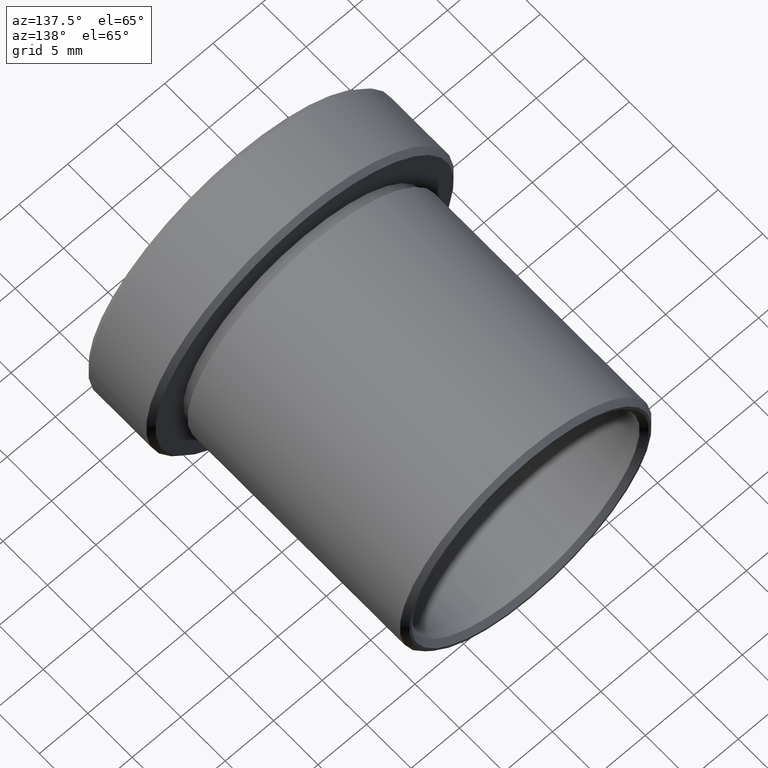
[diagram: clean part render]
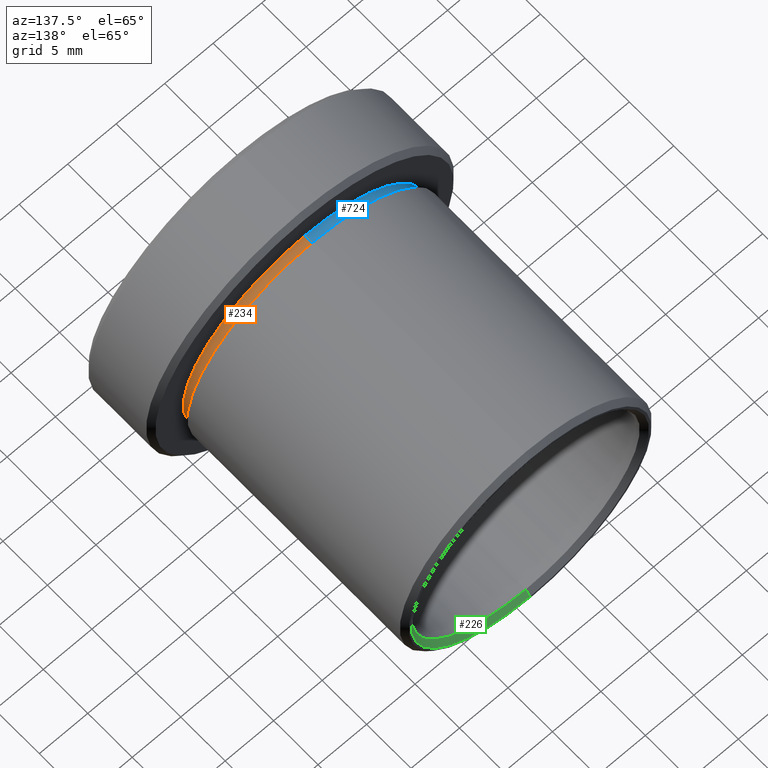
[diagram: same view with three faces highlighted in distinct colors, each labeled with its STEP entity id]
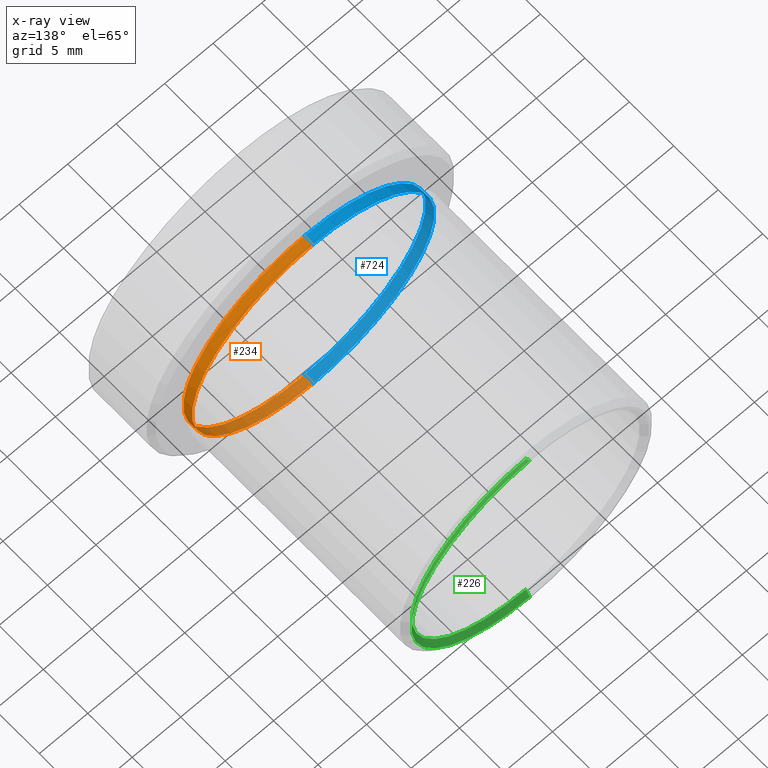
[diagram: x-ray of the same camera — body ghosted, the three highlighted faces saturated]
A machine part, auxiliary view with three faces highlighted in distinct colors.
The next image is the same camera in x-ray (body ghosted, the three faces saturated) — at least one of them is partly hidden behind the body in this view.
Their STEP definitions:

[orange] entity #234 — the highlighted cylindrical surface (partial cylindrical patch) has radius 12.5 mm, axis along (-0, 1, -0).
#59 = DIRECTION ( 'NONE',  ( 0.0000000000000000000, 0.0000000000000000000, 1.000000000000000000 ) ) ;
#61 = DIRECTION ( 'NONE',  ( -0.0000000000000000000, 1.000000000000000000, -0.0000000000000000000 ) ) ;
#62 = CARTESIAN_POINT ( 'NONE',  ( 0.0000000000000000000, 44.59859774529311900, 12.50000000000000500 ) ) ;
#125 = AXIS2_PLACEMENT_3D ( 'NONE', #761, #134, #270 ) ;
#129 = LINE ( 'NONE', #820, #773 ) ;
#130 = VERTEX_POINT ( 'NONE', #246 ) ;
#134 = DIRECTION ( 'NONE',  ( -0.0000000000000000000, 1.000000000000000000, -0.0000000000000000000 ) ) ;
#190 = DIRECTION ( 'NONE',  ( -0.0000000000000000000, 1.000000000000000000, -0.0000000000000000000 ) ) ;
#192 = CARTESIAN_POINT ( 'NONE',  ( 0.0000000000000000000, 2.642854174566895900, 0.0000000000000000000 ) ) ;
#212 = EDGE_CURVE ( 'NONE', #130, #863, #349, .T. ) ;
#231 = EDGE_CURVE ( 'NONE', #578, #863, #129, .T. ) ;
#234 = ADVANCED_FACE ( 'NONE', ( #701 ), #722, .T. ) ;
#246 = CARTESIAN_POINT ( 'NONE',  ( 0.0000000000000000000, 2.642854174566895900, 12.50000000000000500 ) ) ;
#270 = DIRECTION ( 'NONE',  ( 0.0000000000000000000, 0.0000000000000000000, 1.000000000000000000 ) ) ;
#315 = ORIENTED_EDGE ( 'NONE', *, *, #231, .T. ) ;
#320 = AXIS2_PLACEMENT_3D ( 'NONE', #192, #190, #59 ) ;
#349 = CIRCLE ( 'NONE', #320, 12.50000000000000500 ) ;
#431 = ORIENTED_EDGE ( 'NONE', *, *, #564, .F. ) ;
#433 = CARTESIAN_POINT ( 'NONE',  ( 1.530808498934192100E-015, 2.642854174566895900, -12.50000000000000500 ) ) ;
#562 = CARTESIAN_POINT ( 'NONE',  ( 0.0000000000000000000, 1.642854174566894800, 12.50000000000000500 ) ) ;
#564 = EDGE_CURVE ( 'NONE', #721, #130, #667, .T. ) ;
#578 = VERTEX_POINT ( 'NONE', #626 ) ;
#626 = CARTESIAN_POINT ( 'NONE',  ( 1.530808498934192100E-015, 1.642854174566894800, -12.50000000000000500 ) ) ;
#638 = EDGE_CURVE ( 'NONE', #721, #578, #739, .T. ) ;
#667 = LINE ( 'NONE', #62, #811 ) ;
#669 = ORIENTED_EDGE ( 'NONE', *, *, #212, .F. ) ;
#701 = FACE_OUTER_BOUND ( 'NONE', #861, .T. ) ;
#721 = VERTEX_POINT ( 'NONE', #562 ) ;
#722 = CYLINDRICAL_SURFACE ( 'NONE', #849, 12.50000000000000500 ) ;
#729 = ORIENTED_EDGE ( 'NONE', *, *, #638, .T. ) ;
#739 = CIRCLE ( 'NONE', #125, 12.50000000000000500 ) ;
#746 = DIRECTION ( 'NONE',  ( -0.0000000000000000000, 1.000000000000000000, -0.0000000000000000000 ) ) ;
#757 = DIRECTION ( 'NONE',  ( -0.0000000000000000000, 1.000000000000000000, -0.0000000000000000000 ) ) ;
#761 = CARTESIAN_POINT ( 'NONE',  ( 0.0000000000000000000, 1.642854174566894800, 0.0000000000000000000 ) ) ;
#773 = VECTOR ( 'NONE', #746, 1000.000000000000000 ) ;
#811 = VECTOR ( 'NONE', #757, 1000.000000000000000 ) ;
#820 = CARTESIAN_POINT ( 'NONE',  ( 1.530808498934192100E-015, 44.59859774529311900, -12.50000000000000500 ) ) ;
#824 = CARTESIAN_POINT ( 'NONE',  ( 0.0000000000000000000, 44.59859774529311900, 0.0000000000000000000 ) ) ;
#849 = AXIS2_PLACEMENT_3D ( 'NONE', #824, #61, #893 ) ;
#861 = EDGE_LOOP ( 'NONE', ( #729, #315, #669, #431 ) ) ;
#863 = VERTEX_POINT ( 'NONE', #433 ) ;
#893 = DIRECTION ( 'NONE',  ( 0.0000000000000000000, 0.0000000000000000000, 1.000000000000000000 ) ) ;

[blue] entity #724 — the highlighted cylindrical surface (partial cylindrical patch) has radius 12.5 mm, axis along (-0, 1, -0).
#19 = ORIENTED_EDGE ( 'NONE', *, *, #564, .T. ) ;
#20 = CIRCLE ( 'NONE', #782, 12.50000000000000500 ) ;
#37 = AXIS2_PLACEMENT_3D ( 'NONE', #776, #282, #705 ) ;
#62 = CARTESIAN_POINT ( 'NONE',  ( 0.0000000000000000000, 44.59859774529311900, 12.50000000000000500 ) ) ;
#129 = LINE ( 'NONE', #820, #773 ) ;
#130 = VERTEX_POINT ( 'NONE', #246 ) ;
#159 = CARTESIAN_POINT ( 'NONE',  ( 0.0000000000000000000, 2.642854174566895900, 0.0000000000000000000 ) ) ;
#160 = DIRECTION ( 'NONE',  ( 0.0000000000000000000, 0.0000000000000000000, 1.000000000000000000 ) ) ;
#231 = EDGE_CURVE ( 'NONE', #578, #863, #129, .T. ) ;
#246 = CARTESIAN_POINT ( 'NONE',  ( 0.0000000000000000000, 2.642854174566895900, 12.50000000000000500 ) ) ;
#272 = CARTESIAN_POINT ( 'NONE',  ( 0.0000000000000000000, 1.642854174566894800, 0.0000000000000000000 ) ) ;
#282 = DIRECTION ( 'NONE',  ( -0.0000000000000000000, 1.000000000000000000, -0.0000000000000000000 ) ) ;
#345 = DIRECTION ( 'NONE',  ( -0.0000000000000000000, 1.000000000000000000, -0.0000000000000000000 ) ) ;
#433 = CARTESIAN_POINT ( 'NONE',  ( 1.530808498934192100E-015, 2.642854174566895900, -12.50000000000000500 ) ) ;
#458 = AXIS2_PLACEMENT_3D ( 'NONE', #272, #345, #837 ) ;
#487 = FACE_OUTER_BOUND ( 'NONE', #488, .T. ) ;
#488 = EDGE_LOOP ( 'NONE', ( #658, #561, #19, #603 ) ) ;
#526 = CIRCLE ( 'NONE', #458, 12.50000000000000500 ) ;
#561 = ORIENTED_EDGE ( 'NONE', *, *, #601, .T. ) ;
#562 = CARTESIAN_POINT ( 'NONE',  ( 0.0000000000000000000, 1.642854174566894800, 12.50000000000000500 ) ) ;
#564 = EDGE_CURVE ( 'NONE', #721, #130, #667, .T. ) ;
#578 = VERTEX_POINT ( 'NONE', #626 ) ;
#601 = EDGE_CURVE ( 'NONE', #578, #721, #526, .T. ) ;
#603 = ORIENTED_EDGE ( 'NONE', *, *, #804, .F. ) ;
#626 = CARTESIAN_POINT ( 'NONE',  ( 1.530808498934192100E-015, 1.642854174566894800, -12.50000000000000500 ) ) ;
#644 = CYLINDRICAL_SURFACE ( 'NONE', #37, 12.50000000000000500 ) ;
#658 = ORIENTED_EDGE ( 'NONE', *, *, #231, .F. ) ;
#667 = LINE ( 'NONE', #62, #811 ) ;
#705 = DIRECTION ( 'NONE',  ( 0.0000000000000000000, 0.0000000000000000000, 1.000000000000000000 ) ) ;
#713 = DIRECTION ( 'NONE',  ( -0.0000000000000000000, 1.000000000000000000, -0.0000000000000000000 ) ) ;
#721 = VERTEX_POINT ( 'NONE', #562 ) ;
#724 = ADVANCED_FACE ( 'NONE', ( #487 ), #644, .T. ) ;
#746 = DIRECTION ( 'NONE',  ( -0.0000000000000000000, 1.000000000000000000, -0.0000000000000000000 ) ) ;
#757 = DIRECTION ( 'NONE',  ( -0.0000000000000000000, 1.000000000000000000, -0.0000000000000000000 ) ) ;
#773 = VECTOR ( 'NONE', #746, 1000.000000000000000 ) ;
#776 = CARTESIAN_POINT ( 'NONE',  ( 0.0000000000000000000, 44.59859774529311900, 0.0000000000000000000 ) ) ;
#782 = AXIS2_PLACEMENT_3D ( 'NONE', #159, #713, #160 ) ;
#804 = EDGE_CURVE ( 'NONE', #863, #130, #20, .T. ) ;
#811 = VECTOR ( 'NONE', #757, 1000.000000000000000 ) ;
#820 = CARTESIAN_POINT ( 'NONE',  ( 1.530808498934192100E-015, 44.59859774529311900, -12.50000000000000500 ) ) ;
#837 = DIRECTION ( 'NONE',  ( 0.0000000000000000000, 0.0000000000000000000, 1.000000000000000000 ) ) ;
#863 = VERTEX_POINT ( 'NONE', #433 ) ;

[green] entity #226 — the highlighted conical surface has half-angle 45 deg.
#11 = VECTOR ( 'NONE', #600, 1000.000000000000000 ) ;
#13 = CARTESIAN_POINT ( 'NONE',  ( 1.469576158976824500E-015, 26.54285417456689400, -11.75000000000000500 ) ) ;
#67 = FACE_OUTER_BOUND ( 'NONE', #294, .T. ) ;
#73 = VERTEX_POINT ( 'NONE', #871 ) ;
#133 = EDGE_CURVE ( 'NONE', #633, #606, #656, .T. ) ;
#193 = CARTESIAN_POINT ( 'NONE',  ( 0.0000000000000000000, 27.04285417456689400, 12.25000000000000500 ) ) ;
#217 = EDGE_CURVE ( 'NONE', #606, #73, #262, .T. ) ;
#220 = DIRECTION ( 'NONE',  ( 0.0000000000000000000, 0.0000000000000000000, 1.000000000000000000 ) ) ;
#226 = ADVANCED_FACE ( 'NONE', ( #67 ), #592, .F. ) ;
#262 = LINE ( 'NONE', #540, #466 ) ;
#278 = ORIENTED_EDGE ( 'NONE', *, *, #744, .T. ) ;
#288 = CARTESIAN_POINT ( 'NONE',  ( 0.0000000000000000000, 27.04285417456689400, 0.0000000000000000000 ) ) ;
#294 = EDGE_LOOP ( 'NONE', ( #510, #366, #568, #278 ) ) ;
#330 = DIRECTION ( 'NONE',  ( 8.659560562354931600E-017, 0.7071067811865475700, -0.7071067811865474600 ) ) ;
#333 = CARTESIAN_POINT ( 'NONE',  ( 0.0000000000000000000, 27.04285417456689400, 0.0000000000000000000 ) ) ;
#366 = ORIENTED_EDGE ( 'NONE', *, *, #133, .F. ) ;
#388 = DIRECTION ( 'NONE',  ( 0.0000000000000000000, 0.0000000000000000000, 1.000000000000000000 ) ) ;
#466 = VECTOR ( 'NONE', #330, 1000.000000000000000 ) ;
#476 = CARTESIAN_POINT ( 'NONE',  ( 0.0000000000000000000, 26.54285417456689400, 11.75000000000000500 ) ) ;
#482 = EDGE_CURVE ( 'NONE', #633, #845, #852, .T. ) ;
#501 = AXIS2_PLACEMENT_3D ( 'NONE', #333, #679, #827 ) ;
#510 = ORIENTED_EDGE ( 'NONE', *, *, #217, .F. ) ;
#532 = AXIS2_PLACEMENT_3D ( 'NONE', #288, #637, #220 ) ;
#540 = CARTESIAN_POINT ( 'NONE',  ( 1.500192328955508300E-015, 27.04285417456689400, -12.25000000000000500 ) ) ;
#568 = ORIENTED_EDGE ( 'NONE', *, *, #482, .T. ) ;
#572 = AXIS2_PLACEMENT_3D ( 'NONE', #596, #812, #388 ) ;
#592 = CONICAL_SURFACE ( 'NONE', #501, 12.25000000000000500, 0.7853981633974482800 ) ;
#596 = CARTESIAN_POINT ( 'NONE',  ( 0.0000000000000000000, 26.54285417456689400, 0.0000000000000000000 ) ) ;
#600 = DIRECTION ( 'NONE',  ( 0.0000000000000000000, 0.7071067811865475700, 0.7071067811865474600 ) ) ;
#606 = VERTEX_POINT ( 'NONE', #13 ) ;
#633 = VERTEX_POINT ( 'NONE', #476 ) ;
#637 = DIRECTION ( 'NONE',  ( -0.0000000000000000000, 1.000000000000000000, -0.0000000000000000000 ) ) ;
#656 = CIRCLE ( 'NONE', #572, 11.75000000000000500 ) ;
#679 = DIRECTION ( 'NONE',  ( -0.0000000000000000000, 1.000000000000000000, -0.0000000000000000000 ) ) ;
#744 = EDGE_CURVE ( 'NONE', #845, #73, #832, .T. ) ;
#812 = DIRECTION ( 'NONE',  ( -0.0000000000000000000, 1.000000000000000000, -0.0000000000000000000 ) ) ;
#827 = DIRECTION ( 'NONE',  ( 0.0000000000000000000, 0.0000000000000000000, 1.000000000000000000 ) ) ;
#832 = CIRCLE ( 'NONE', #532, 12.25000000000000500 ) ;
#845 = VERTEX_POINT ( 'NONE', #855 ) ;
#852 = LINE ( 'NONE', #193, #11 ) ;
#855 = CARTESIAN_POINT ( 'NONE',  ( 0.0000000000000000000, 27.04285417456689400, 12.25000000000000500 ) ) ;
#871 = CARTESIAN_POINT ( 'NONE',  ( 1.500192328955508300E-015, 27.04285417456689400, -12.25000000000000500 ) ) ;